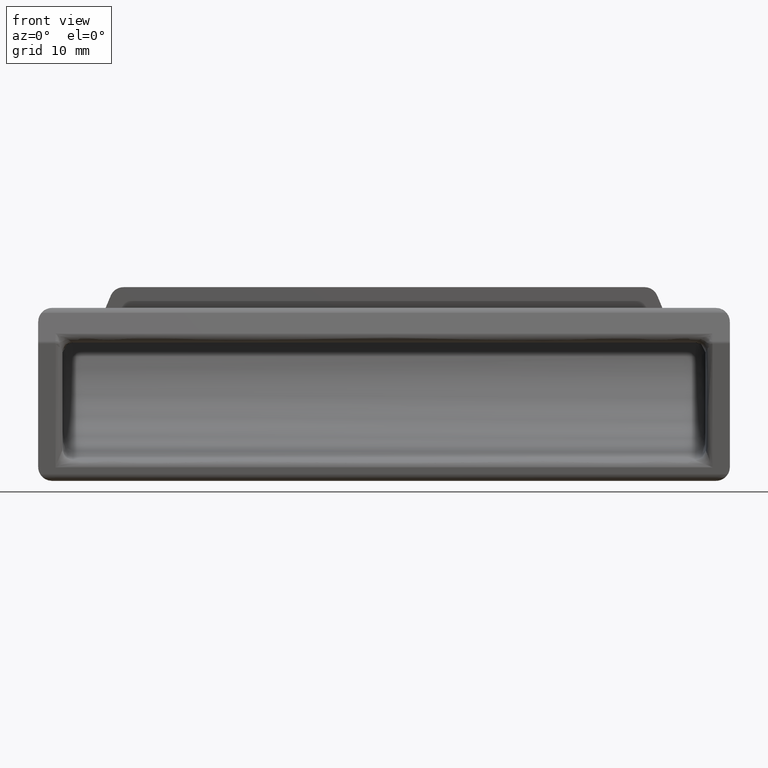
[diagram: clean part render]
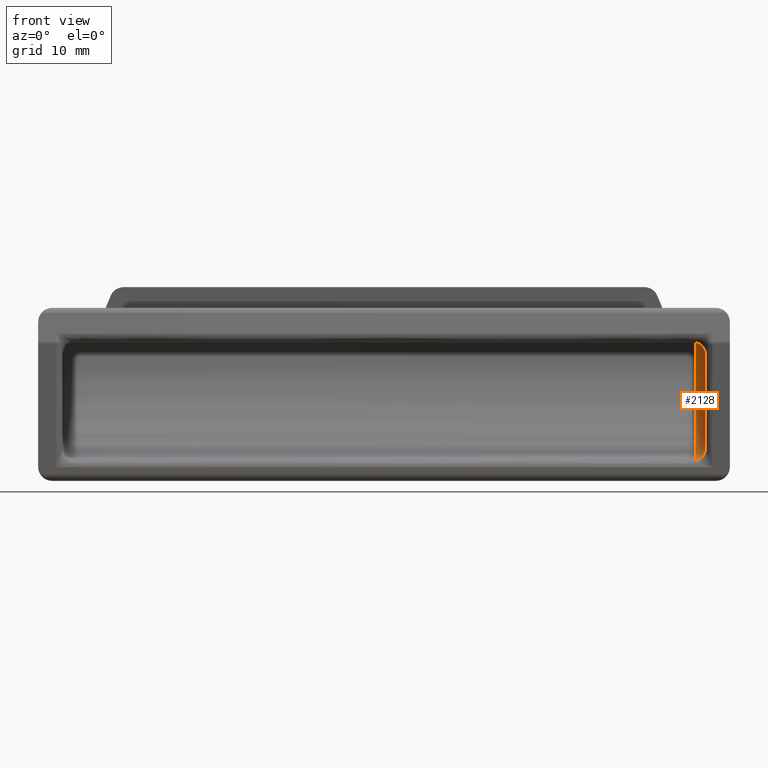
[diagram: same view with one face highlighted and labeled with its STEP entity id]
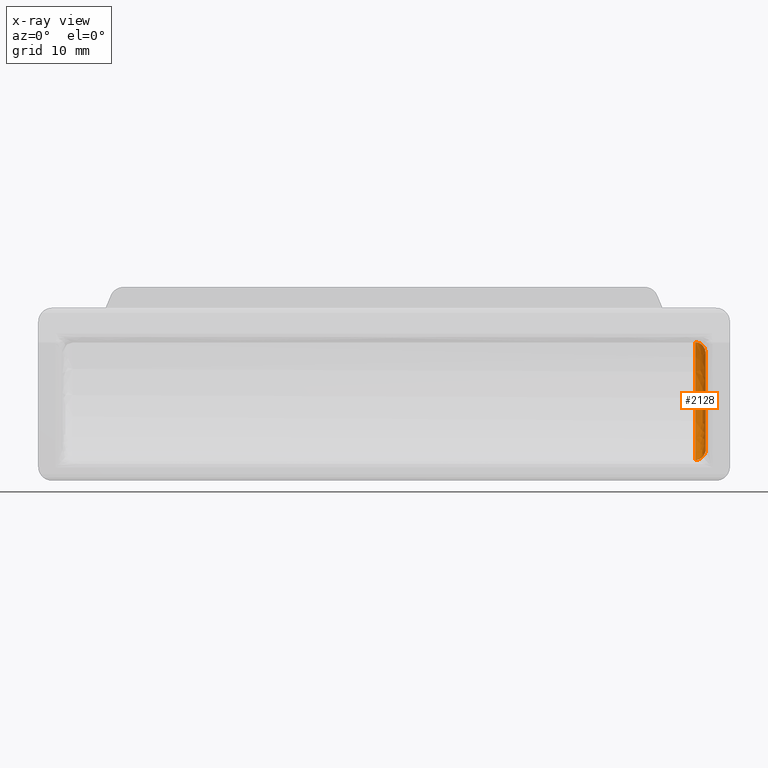
[diagram: x-ray of the same camera — body ghosted, the highlighted face saturated]
A machine part, front view. The second image highlights one B-rep face of the part: STEP entity #2128.
The next image is the same camera in x-ray: the body ghosted, the highlighted face saturated — about 1% of this face is hidden behind the body in this view.
In plain terms, the highlighted face is a freeform B-spline surface patch.
Its self-contained STEP definition (entity closure, byte-faithful):
#671=CARTESIAN_POINT('',(46.500000000000000,13.350902052356460,6.250000000000000));
#672=VERTEX_POINT('',#671);
#678=CARTESIAN_POINT('',(46.500000000000000,-0.148716413180530,-7.750000000000000));
#679=VERTEX_POINT('',#678);
#680=CARTESIAN_POINT('',(46.500000000000000,13.350902052356490,6.249999999999995));
#681=CARTESIAN_POINT('',(46.500000000000000,11.407659454799264,-5.384772550323745));
#682=CARTESIAN_POINT('',(46.500000000000000,-0.148716413180532,-7.749999999999974));
#690=(BOUNDED_CURVE()B_SPLINE_CURVE(2,(#680,#681,#682),.UNSPECIFIED.,.F.,.U.)CURVE()GEOMETRIC_REPRESENTATION_ITEM()QUASI_UNIFORM_CURVE()RATIONAL_B_SPLINE_CURVE((1.0,0.824367996227809,1.0))REPRESENTATION_ITEM(''));
#691=EDGE_CURVE('',#672,#679,#690,.T.);
#798=CARTESIAN_POINT('',(45.0,15.038200026365500,7.750000000000000));
#799=VERTEX_POINT('',#798);
#820=CARTESIAN_POINT('',(45.0,1.776357E-015,-9.250000000000000));
#821=VERTEX_POINT('',#820);
#827=CARTESIAN_POINT('',(45.0,2.168404E-015,-9.250000000000020));
#828=CARTESIAN_POINT('',(45.0,14.020849259139665,-6.501447393057122));
#829=CARTESIAN_POINT('',(45.0,15.038200026365541,7.750000000000003));
#837=(BOUNDED_CURVE()B_SPLINE_CURVE(2,(#827,#828,#829),.UNSPECIFIED.,.F.,.U.)CURVE()GEOMETRIC_REPRESENTATION_ITEM()QUASI_UNIFORM_CURVE()RATIONAL_B_SPLINE_CURVE((1.0,0.794278952655642,1.0))REPRESENTATION_ITEM(''));
#838=EDGE_CURVE('',#821,#799,#837,.T.);
#2031=CARTESIAN_POINT('',(46.500000000000000,-0.148716413180530,-7.750000000000000));
#2032=CARTESIAN_POINT('',(46.500000000000000,-0.146251238435907,-7.774345267007857));
#2033=CARTESIAN_POINT('',(46.499397502988963,-0.143743910040274,-7.799121000612457));
#2034=CARTESIAN_POINT('',(46.496978872038532,-0.138775084321808,-7.848285305824289));
#2035=CARTESIAN_POINT('',(46.495166937518341,-0.136300520001557,-7.872796547852111));
#2036=CARTESIAN_POINT('',(46.487934822164917,-0.128906047524451,-7.946118887000189));
#2037=CARTESIAN_POINT('',(46.480722678338473,-0.124015307547374,-7.994719110802310));
#2038=CARTESIAN_POINT('',(46.461473948312403,-0.114311179932367,-8.091351712668857));
#2039=CARTESIAN_POINT('',(46.449420631289030,-0.109503471295464,-8.139328605327918));
#2040=CARTESIAN_POINT('',(46.420948257657493,-0.100133949944432,-8.233014470169376));
#2041=CARTESIAN_POINT('',(46.388033544718184,-0.090966242435609,-8.324870968004012));
#2042=CARTESIAN_POINT('',(46.346355436938111,-0.082192514351478,-8.413118264473413));
#2043=CARTESIAN_POINT('',(46.300229998811673,-0.073616277404764,-8.499533685327876));
#2044=CARTESIAN_POINT('',(46.274793206896057,-0.069405526993405,-8.542041807272808));
#2045=CARTESIAN_POINT('',(46.192700534067932,-0.057248624537062,-8.664973887769232));
#2046=CARTESIAN_POINT('',(46.130710354546252,-0.049809104261824,-8.740483207461118));
#2047=CARTESIAN_POINT('',(46.027082833429603,-0.039607194324080,-8.844299582294262));
#2048=CARTESIAN_POINT('',(45.990753967970633,-0.036367273426027,-8.877319211588333));
#2049=CARTESIAN_POINT('',(45.914408047972387,-0.030216285734287,-8.940084010340874));
#2050=CARTESIAN_POINT('',(45.874650119762791,-0.027328949195262,-8.969587220621639));
#2051=CARTESIAN_POINT('',(45.752335763791649,-0.019331677433247,-9.051389327349293));
#2052=CARTESIAN_POINT('',(45.666140422624991,-0.014828613308561,-9.097569298555017));
#2053=CARTESIAN_POINT('',(45.529800929140151,-0.009314636825275,-9.154183924828946));
#2054=CARTESIAN_POINT('',(45.482915505929952,-0.007678803693985,-9.170994315736886));
#2055=CARTESIAN_POINT('',(45.388533331295967,-0.004892043254927,-9.199646191902078));
#2056=CARTESIAN_POINT('',(45.340929439528573,-0.003733875007912,-9.211561909020258));
#2057=CARTESIAN_POINT('',(45.196906878084519,-0.000947372605689,-9.240238929805521));
#2058=CARTESIAN_POINT('',(45.099289297334082,1.775871E-015,-9.250000000000004));
#2059=CARTESIAN_POINT('',(45.0,1.776357E-015,-9.250000000000000));
#2060=B_SPLINE_CURVE_WITH_KNOTS('',3,(#2031,#2032,#2033,#2034,#2035,#2036,#2037,#2038,#2039,#2040,#2041,#2042,#2043,#2044,#2045,#2046,#2047,#2048,#2049,#2050,#2051,#2052,#2053,#2054,#2055,#2056,#2057,#2058,#2059),.UNSPECIFIED.,.F.,.U.,(4,2,2,2,2,1,2,2,2,2,2,2,2,2,4),(0.0,0.031250000000001,0.062500000000002,0.125000000000002,0.187500000000001,0.250000000000001,0.312500000000000,0.375000000000000,0.499999999999997,0.562499999999998,0.624999999999998,0.749999999999999,0.812499999999999,0.875000000000000,1.0),.UNSPECIFIED.);
#2061=EDGE_CURVE('',#679,#821,#2060,.T.);
#2069=CARTESIAN_POINT('',(46.496369043449832,13.480241133509841,8.889299596093208));
#2070=CARTESIAN_POINT('',(46.496369043449825,13.315298820637086,-5.876250289744744));
#2071=CARTESIAN_POINT('',(46.496369043449818,-1.319674228775753,-7.842524238284174));
#2072=CARTESIAN_POINT('',(46.616305794017961,15.200745271387722,8.870080269078441));
#2073=CARTESIAN_POINT('',(46.616305794017961,15.019181683070522,-7.383397532082547));
#2074=CARTESIAN_POINT('',(46.616305794017947,-1.090561023319836,-9.547813366283167));
#2075=CARTESIAN_POINT('',(44.895694308994457,15.080816050875709,8.871419968796038));
#2076=CARTESIAN_POINT('',(44.895694308994472,14.900411062857156,-7.278340537454599));
#2077=CARTESIAN_POINT('',(44.895694308994450,-1.106531556336529,-9.428944721119210));
#2085=(BOUNDED_SURFACE()B_SPLINE_SURFACE(2,2,((#2069,#2072,#2075),(#2070,#2073,#2076),(#2071,#2074,#2077)),.UNSPECIFIED.,.F.,.F.,.U.)B_SPLINE_SURFACE_WITH_KNOTS((3,3),(3,3),(0.0,27.821116802488149),(0.0,2.733560983672223),.UNSPECIFIED.)GEOMETRIC_REPRESENTATION_ITEM()RATIONAL_B_SPLINE_SURFACE(((0.846832140842470,0.555712374513144,0.846832130177658),(0.640917844867244,0.420586277092284,0.640917836795671),(0.847867025315770,0.556391491519062,0.847867014637926)))REPRESENTATION_ITEM('')SURFACE());
#2086=CARTESIAN_POINT('',(46.500000000000000,13.350902052356460,6.250000000000000));
#2087=CARTESIAN_POINT('',(46.500000000000007,13.374558154217670,6.270036255037451));
#2088=CARTESIAN_POINT('',(46.499593669348798,13.398474134331400,6.290328040261008));
#2089=CARTESIAN_POINT('',(46.497965264635177,13.445912806509559,6.330669634490397));
#2090=CARTESIAN_POINT('',(46.496743697707053,13.469572933568401,6.350832256828934));
#2091=CARTESIAN_POINT('',(46.491851062833163,13.540376078961399,6.411294044701191));
#2092=CARTESIAN_POINT('',(46.486954092581783,13.587342051681690,6.451567293745393));
#2093=CARTESIAN_POINT('',(46.467239777262321,13.727528025756580,6.572265147717588));
#2094=CARTESIAN_POINT('',(46.447441425374407,13.820039956867531,6.652571363138627));
#2095=CARTESIAN_POINT('',(46.406629875048452,13.957314470915231,6.772666232120019));
#2096=CARTESIAN_POINT('',(46.391117589068173,14.002918450728689,6.812721296605151));
#2097=CARTESIAN_POINT('',(46.356453994220630,14.092601555290940,6.891791216698020));
#2098=CARTESIAN_POINT('',(46.337280902576772,14.136783600926980,6.930895483756021));
#2099=CARTESIAN_POINT('',(46.273915184097852,14.267269045910940,7.046803358745721));
#2100=CARTESIAN_POINT('',(46.223958508974739,14.351537215805511,7.122225852816924));
#2101=CARTESIAN_POINT('',(46.135019994726143,14.473171957563890,7.231805838277446));
#2102=CARTESIAN_POINT('',(46.102897568135759,14.513054788837209,7.267860333206136));
#2103=CARTESIAN_POINT('',(46.033796772265063,14.590370547979569,7.337973776048218));
#2104=CARTESIAN_POINT('',(45.997067726167813,14.627550156439010,7.371802020702089));
#2105=CARTESIAN_POINT('',(45.918837312163120,14.698707933953180,7.436727356216922));
#2106=CARTESIAN_POINT('',(45.877339474487790,14.732688358411080,7.467826590859660));
#2107=CARTESIAN_POINT('',(45.811028119157292,14.780961621833020,7.512117240854170));
#2108=CARTESIAN_POINT('',(45.788244757795368,14.796601763980130,7.526486471352475));
#2109=CARTESIAN_POINT('',(45.741203385112733,14.826908474959369,7.554363849405219));
#2110=CARTESIAN_POINT('',(45.716854891792323,14.841624046806359,7.567917219452251));
#2111=CARTESIAN_POINT('',(45.642197131197882,14.883724089508780,7.606734969528884));
#2112=CARTESIAN_POINT('',(45.590302773494969,14.909094863562970,7.630186534577069));
#2113=CARTESIAN_POINT('',(45.508948875406013,14.942718761545240,7.661316442503042));
#2114=CARTESIAN_POINT('',(45.481243728981291,14.953185748893890,7.671016460628906));
#2115=CARTESIAN_POINT('',(45.424577029531868,14.972538510760410,7.688964090606850));
#2116=CARTESIAN_POINT('',(45.395500023193669,14.981454876319210,7.697240116191066));
#2117=CARTESIAN_POINT('',(45.248089680630827,15.021392621671950,7.734331184913780));
#2118=CARTESIAN_POINT('',(45.126233059208268,15.038200026365500,7.750000000000001));
#2119=CARTESIAN_POINT('',(45.0,15.038200026365500,7.750000000000000));
#2120=B_SPLINE_CURVE_WITH_KNOTS('',3,(#2086,#2087,#2088,#2089,#2090,#2091,#2092,#2093,#2094,#2095,#2096,#2097,#2098,#2099,#2100,#2101,#2102,#2103,#2104,#2105,#2106,#2107,#2108,#2109,#2110,#2111,#2112,#2113,#2114,#2115,#2116,#2117,#2118,#2119),.UNSPECIFIED.,.F.,.U.,(4,2,2,2,2,2,2,2,2,2,2,2,2,2,2,2,4),(0.0,0.031250000000002,0.062500000000004,0.125000000000007,0.250000000000011,0.312500000000013,0.375000000000015,0.500000000000017,0.562500000000019,0.625000000000020,0.687500000000021,0.718750000000020,0.750000000000019,0.812500000000011,0.843750000000011,0.875000000000010,1.0),.UNSPECIFIED.);
#2121=EDGE_CURVE('',#672,#799,#2120,.T.);
#2122=ORIENTED_EDGE('',*,*,#2121,.T.);
#2123=ORIENTED_EDGE('',*,*,#838,.F.);
#2124=ORIENTED_EDGE('',*,*,#2061,.F.);
#2125=ORIENTED_EDGE('',*,*,#691,.F.);
#2126=EDGE_LOOP('',(#2122,#2123,#2124,#2125));
#2127=FACE_OUTER_BOUND('',#2126,.T.);
#2128=ADVANCED_FACE('',(#2127),#2085,.F.);